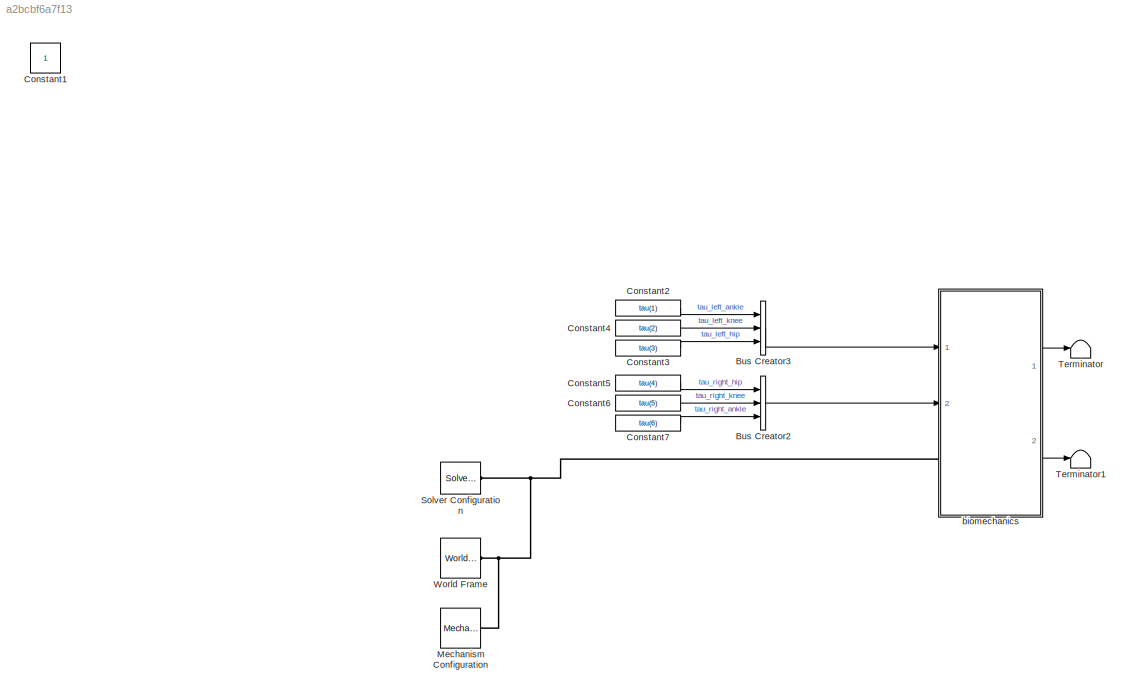
MODEL slx_a2bcbf6a7f13
KIND model
CONFIG AbsTol = auto
CONFIG EnableMultiTasking = off
CONFIG FixedStep = auto
CONFIG MaxStep = auto
CONFIG MinStep = auto
CONFIG RelTol = 1e-3
CONFIG SampleTimeConstraint = Unconstrained
CONFIG SolverName = VariableStepAuto
CONFIG StartTime = 0.0
CONFIG StopTime = 0.5
BLOCK [BusCreator] Bus Creator2
  DisplayOption = bar
  InheritFromInputs = on
  Inputs = 3
  Ports = [3, 1]
BLOCK [BusCreator] Bus Creator3
  DisplayOption = bar
  InheritFromInputs = on
  Inputs = 3
  Ports = [3, 1]
BLOCK [Constant] Constant1
  IOType = siggen
BLOCK [Constant] Constant2
  Value = tau(1)
BLOCK [Constant] Constant3
  Value = tau(3)
BLOCK [Constant] Constant4
  Value = tau(2)
BLOCK [Constant] Constant5
  Value = tau(4)
BLOCK [Constant] Constant6
  Value = tau(5)
BLOCK [Constant] Constant7
  Value = tau(6)
BLOCK [Reference] Mechanism Configuration  REF=sm_lib/Utilities/Mechanism
Configuration
  Ports = [0, 0, 0, 0, 0, 0, 1]
  SourceBlock = sm_lib/Utilities/Mechanism\nConfiguration
  SourceProductBaseCode = MS
  SourceType = Mechanism\nConfiguration
BLOCK [Reference] Solver Configuration  REF=nesl_utility/Solver
Configuration
  Ports = [0, 0, 0, 0, 0, 0, 1]
  SourceBlock = nesl_utility/Solver\nConfiguration
  SourceProductBaseCode = PW,SS
  SourceType = Solver\nConfiguration
BLOCK [Terminator] Terminator
BLOCK [Terminator] Terminator1
BLOCK [Reference] World Frame  REF=sm_lib/Frames and
Transforms/World Frame
  Ports = [0, 0, 0, 0, 0, 0, 1]
  SourceBlock = sm_lib/Frames and\nTransforms/World Frame
  SourceProductBaseCode = MS
  SourceType = World Frame
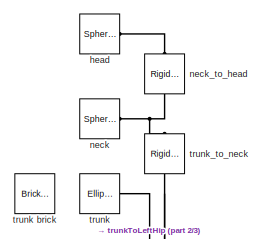
[diagram: biomechanics - part 1/3, top center region]
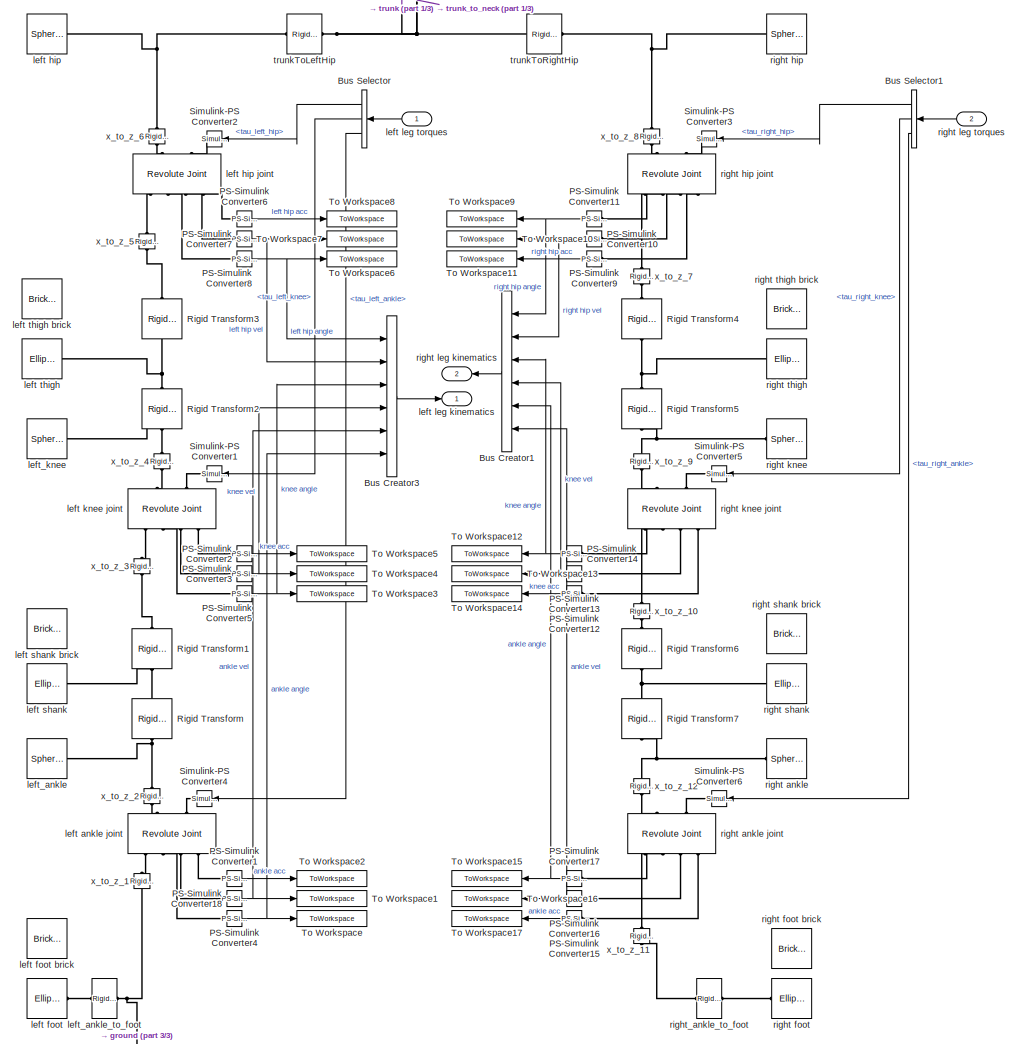
[diagram: biomechanics - part 2/3, most of the canvas]
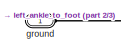
[diagram: biomechanics - part 3/3, bottom left region]
BLOCK [SubSystem] biomechanics
  Ports = [2, 2, 0, 0, 0, 1]
  RequestExecContextInheritance = off
BLOCK [BusCreator] biomechanics/Bus Creator1
  DisplayOption = bar
  InheritFromInputs = on
  Inputs = 6
  NameLocation = top
  Ports = [6, 1]
BLOCK [BusCreator] biomechanics/Bus Creator3
  DisplayOption = bar
  InheritFromInputs = on
  Inputs = 6
  Ports = [6, 1]
BLOCK [BusSelector] biomechanics/Bus Selector
  NameLocation = top
  OutputSignals = tau_left_hip,tau_left_knee,tau_left_ankle
  Ports = [1, 3]
BLOCK [BusSelector] biomechanics/Bus Selector1
  NameLocation = top
  OutputSignals = tau_right_hip,tau_right_knee,tau_right_ankle
  Ports = [1, 3]
BLOCK [Reference] biomechanics/PS-Simulink Converter1  REF=nesl_utility/PS-Simulink
Converter
  Ports = [0, 1, 0, 0, 0, 1]
  SourceBlock = nesl_utility/PS-Simulink\nConverter
  SourceProductBaseCode = PW,SS
  SourceType = PS-Simulink\nConverter
BLOCK [Reference] biomechanics/PS-Simulink Converter10  REF=nesl_utility/PS-Simulink
Converter
  NameLocation = top
  Ports = [0, 1, 0, 0, 0, 1]
  SourceBlock = nesl_utility/PS-Simulink\nConverter
  SourceProductBaseCode = PW,SS
  SourceType = PS-Simulink\nConverter
BLOCK [Reference] biomechanics/PS-Simulink Converter11  REF=nesl_utility/PS-Simulink
Converter
  NameLocation = top
  Ports = [0, 1, 0, 0, 0, 1]
  SourceBlock = nesl_utility/PS-Simulink\nConverter
  SourceProductBaseCode = PW,SS
  SourceType = PS-Simulink\nConverter
BLOCK [Reference] biomechanics/PS-Simulink Converter12  REF=nesl_utility/PS-Simulink
Converter
  NameLocation = top
  Ports = [0, 1, 0, 0, 0, 1]
  SourceBlock = nesl_utility/PS-Simulink\nConverter
  SourceProductBaseCode = PW,SS
  SourceType = PS-Simulink\nConverter
BLOCK [Reference] biomechanics/PS-Simulink Converter13  REF=nesl_utility/PS-Simulink
Converter
  NameLocation = top
  Ports = [0, 1, 0, 0, 0, 1]
  SourceBlock = nesl_utility/PS-Simulink\nConverter
  SourceProductBaseCode = PW,SS
  SourceType = PS-Simulink\nConverter
BLOCK [Reference] biomechanics/PS-Simulink Converter14  REF=nesl_utility/PS-Simulink
Converter
  NameLocation = top
  Ports = [0, 1, 0, 0, 0, 1]
  SourceBlock = nesl_utility/PS-Simulink\nConverter
  SourceProductBaseCode = PW,SS
  SourceType = PS-Simulink\nConverter
BLOCK [Reference] biomechanics/PS-Simulink Converter15  REF=nesl_utility/PS-Simulink
Converter
  NameLocation = top
  Ports = [0, 1, 0, 0, 0, 1]
  SourceBlock = nesl_utility/PS-Simulink\nConverter
  SourceProductBaseCode = PW,SS
  SourceType = PS-Simulink\nConverter
BLOCK [Reference] biomechanics/PS-Simulink Converter16  REF=nesl_utility/PS-Simulink
Converter
  NameLocation = top
  Ports = [0, 1, 0, 0, 0, 1]
  SourceBlock = nesl_utility/PS-Simulink\nConverter
  SourceProductBaseCode = PW,SS
  SourceType = PS-Simulink\nConverter
BLOCK [Reference] biomechanics/PS-Simulink Converter17  REF=nesl_utility/PS-Simulink
Converter
  NameLocation = top
  Ports = [0, 1, 0, 0, 0, 1]
  SourceBlock = nesl_utility/PS-Simulink\nConverter
  SourceProductBaseCode = PW,SS
  SourceType = PS-Simulink\nConverter
BLOCK [Reference] biomechanics/PS-Simulink Converter18  REF=nesl_utility/PS-Simulink
Converter
  Ports = [0, 1, 0, 0, 0, 1]
  SourceBlock = nesl_utility/PS-Simulink\nConverter
  SourceProductBaseCode = PW,SS
  SourceType = PS-Simulink\nConverter
BLOCK [Reference] biomechanics/PS-Simulink Converter2  REF=nesl_utility/PS-Simulink
Converter
  Ports = [0, 1, 0, 0, 0, 1]
  SourceBlock = nesl_utility/PS-Simulink\nConverter
  SourceProductBaseCode = PW,SS
  SourceType = PS-Simulink\nConverter
BLOCK [Reference] biomechanics/PS-Simulink Converter3  REF=nesl_utility/PS-Simulink
Converter
  Ports = [0, 1, 0, 0, 0, 1]
  SourceBlock = nesl_utility/PS-Simulink\nConverter
  SourceProductBaseCode = PW,SS
  SourceType = PS-Simulink\nConverter
BLOCK [Reference] biomechanics/PS-Simulink Converter4  REF=nesl_utility/PS-Simulink
Converter
  Ports = [0, 1, 0, 0, 0, 1]
  SourceBlock = nesl_utility/PS-Simulink\nConverter
  SourceProductBaseCode = PW,SS
  SourceType = PS-Simulink\nConverter
BLOCK [Reference] biomechanics/PS-Simulink Converter5  REF=nesl_utility/PS-Simulink
Converter
  Ports = [0, 1, 0, 0, 0, 1]
  SourceBlock = nesl_utility/PS-Simulink\nConverter
  SourceProductBaseCode = PW,SS
  SourceType = PS-Simulink\nConverter
BLOCK [Reference] biomechanics/PS-Simulink Converter6  REF=nesl_utility/PS-Simulink
Converter
  Ports = [0, 1, 0, 0, 0, 1]
  SourceBlock = nesl_utility/PS-Simulink\nConverter
  SourceProductBaseCode = PW,SS
  SourceType = PS-Simulink\nConverter
BLOCK [Reference] biomechanics/PS-Simulink Converter7  REF=nesl_utility/PS-Simulink
Converter
  Ports = [0, 1, 0, 0, 0, 1]
  SourceBlock = nesl_utility/PS-Simulink\nConverter
  SourceProductBaseCode = PW,SS
  SourceType = PS-Simulink\nConverter
BLOCK [Reference] biomechanics/PS-Simulink Converter8  REF=nesl_utility/PS-Simulink
Converter
  Ports = [0, 1, 0, 0, 0, 1]
  SourceBlock = nesl_utility/PS-Simulink\nConverter
  SourceProductBaseCode = PW,SS
  SourceType = PS-Simulink\nConverter
BLOCK [Reference] biomechanics/PS-Simulink Converter9  REF=nesl_utility/PS-Simulink
Converter
  NameLocation = top
  Ports = [0, 1, 0, 0, 0, 1]
  SourceBlock = nesl_utility/PS-Simulink\nConverter
  SourceProductBaseCode = PW,SS
  SourceType = PS-Simulink\nConverter
BLOCK [Reference] biomechanics/Rigid Transform  REF=sm_lib/Frames and
Transforms/Rigid
Transform
  NameLocation = right
  Ports = [0, 0, 0, 0, 0, 1, 1]
  SourceBlock = sm_lib/Frames and\nTransforms/Rigid\nTransform
  SourceProductBaseCode = MS
  SourceType = Rigid\nTransform
BLOCK [Reference] biomechanics/Rigid Transform1  REF=sm_lib/Frames and
Transforms/Rigid
Transform
  NameLocation = right
  Ports = [0, 0, 0, 0, 0, 1, 1]
  SourceBlock = sm_lib/Frames and\nTransforms/Rigid\nTransform
  SourceProductBaseCode = MS
  SourceType = Rigid\nTransform
BLOCK [Reference] biomechanics/Rigid Transform2  REF=sm_lib/Frames and
Transforms/Rigid
Transform
  NameLocation = right
  Ports = [0, 0, 0, 0, 0, 1, 1]
  SourceBlock = sm_lib/Frames and\nTransforms/Rigid\nTransform
  SourceProductBaseCode = MS
  SourceType = Rigid\nTransform
BLOCK [Reference] biomechanics/Rigid Transform3  REF=sm_lib/Frames and
Transforms/Rigid
Transform
  NameLocation = right
  Ports = [0, 0, 0, 0, 0, 1, 1]
  SourceBlock = sm_lib/Frames and\nTransforms/Rigid\nTransform
  SourceProductBaseCode = MS
  SourceType = Rigid\nTransform
BLOCK [Reference] biomechanics/Rigid Transform4  REF=sm_lib/Frames and
Transforms/Rigid
Transform
  NameLocation = right
  Ports = [0, 0, 0, 0, 0, 1, 1]
  SourceBlock = sm_lib/Frames and\nTransforms/Rigid\nTransform
  SourceProductBaseCode = MS
  SourceType = Rigid\nTransform
BLOCK [Reference] biomechanics/Rigid Transform5  REF=sm_lib/Frames and
Transforms/Rigid
Transform
  NameLocation = right
  Ports = [0, 0, 0, 0, 0, 1, 1]
  SourceBlock = sm_lib/Frames and\nTransforms/Rigid\nTransform
  SourceProductBaseCode = MS
  SourceType = Rigid\nTransform
BLOCK [Reference] biomechanics/Rigid Transform6  REF=sm_lib/Frames and
Transforms/Rigid
Transform
  NameLocation = right
  Ports = [0, 0, 0, 0, 0, 1, 1]
  SourceBlock = sm_lib/Frames and\nTransforms/Rigid\nTransform
  SourceProductBaseCode = MS
  SourceType = Rigid\nTransform
BLOCK [Reference] biomechanics/Rigid Transform7  REF=sm_lib/Frames and
Transforms/Rigid
Transform
  NameLocation = right
  Ports = [0, 0, 0, 0, 0, 1, 1]
  SourceBlock = sm_lib/Frames and\nTransforms/Rigid\nTransform
  SourceProductBaseCode = MS
  SourceType = Rigid\nTransform
BLOCK [Reference] biomechanics/Simulink-PS Converter1  REF=nesl_utility/Simulink-PS
Converter
  NameLocation = top
  Ports = [1, 0, 0, 0, 0, 0, 1]
  SourceBlock = nesl_utility/Simulink-PS\nConverter
  SourceProductBaseCode = PW,SS
  SourceType = Simulink-PS\nConverter
BLOCK [Reference] biomechanics/Simulink-PS Converter2  REF=nesl_utility/Simulink-PS
Converter
  NameLocation = top
  Ports = [1, 0, 0, 0, 0, 0, 1]
  SourceBlock = nesl_utility/Simulink-PS\nConverter
  SourceProductBaseCode = PW,SS
  SourceType = Simulink-PS\nConverter
BLOCK [Reference] biomechanics/Simulink-PS Converter3  REF=nesl_utility/Simulink-PS
Converter
  NameLocation = top
  Ports = [1, 0, 0, 0, 0, 0, 1]
  SourceBlock = nesl_utility/Simulink-PS\nConverter
  SourceProductBaseCode = PW,SS
  SourceType = Simulink-PS\nConverter
BLOCK [Reference] biomechanics/Simulink-PS Converter4  REF=nesl_utility/Simulink-PS
Converter
  NameLocation = top
  Ports = [1, 0, 0, 0, 0, 0, 1]
  SourceBlock = nesl_utility/Simulink-PS\nConverter
  SourceProductBaseCode = PW,SS
  SourceType = Simulink-PS\nConverter
BLOCK [Reference] biomechanics/Simulink-PS Converter5  REF=nesl_utility/Simulink-PS
Converter
  NameLocation = top
  Ports = [1, 0, 0, 0, 0, 0, 1]
  SourceBlock = nesl_utility/Simulink-PS\nConverter
  SourceProductBaseCode = PW,SS
  SourceType = Simulink-PS\nConverter
BLOCK [Reference] biomechanics/Simulink-PS Converter6  REF=nesl_utility/Simulink-PS
Converter
  NameLocation = top
  Ports = [1, 0, 0, 0, 0, 0, 1]
  SourceBlock = nesl_utility/Simulink-PS\nConverter
  SourceProductBaseCode = PW,SS
  SourceType = Simulink-PS\nConverter
BLOCK [ToWorkspace] biomechanics/To Workspace
  FixptAsFi = on
  MaxDataPoints = inf
  Ports = [1]
  SampleTime = -1
  SaveFormat = Timeseries
  VariableName = left_ankle_angle
BLOCK [ToWorkspace] biomechanics/To Workspace1
  FixptAsFi = on
  MaxDataPoints = inf
  Ports = [1]
  SampleTime = -1
  SaveFormat = Timeseries
  VariableName = left_ankle_vel
BLOCK [ToWorkspace] biomechanics/To Workspace10
  FixptAsFi = on
  MaxDataPoints = inf
  NameLocation = left
  Ports = [1]
  SampleTime = -1
  SaveFormat = Timeseries
  VariableName = right_hip_vel
BLOCK [ToWorkspace] biomechanics/To Workspace11
  FixptAsFi = on
  MaxDataPoints = inf
  NameLocation = top
  Ports = [1]
  SampleTime = -1
  SaveFormat = Timeseries
  VariableName = right_hip_acc
BLOCK [ToWorkspace] biomechanics/To Workspace12
  FixptAsFi = on
  MaxDataPoints = inf
  NameLocation = top
  Ports = [1]
  SampleTime = -1
  SaveFormat = Timeseries
  VariableName = right_knee_angle
BLOCK [ToWorkspace] biomechanics/To Workspace13
  FixptAsFi = on
  MaxDataPoints = inf
  NameLocation = top
  Ports = [1]
  SampleTime = -1
  SaveFormat = Timeseries
  VariableName = right_knee_vel
BLOCK [ToWorkspace] biomechanics/To Workspace14
  FixptAsFi = on
  MaxDataPoints = inf
  NameLocation = top
  Ports = [1]
  SampleTime = -1
  SaveFormat = Timeseries
  VariableName = right_knee_acc
BLOCK [ToWorkspace] biomechanics/To Workspace15
  FixptAsFi = on
  MaxDataPoints = inf
  NameLocation = top
  Ports = [1]
  SampleTime = -1
  SaveFormat = Timeseries
  VariableName = right_ankle_angle
BLOCK [ToWorkspace] biomechanics/To Workspace16
  FixptAsFi = on
  MaxDataPoints = inf
  NameLocation = top
  Ports = [1]
  SampleTime = -1
  SaveFormat = Timeseries
  VariableName = right_ankle_vel
BLOCK [ToWorkspace] biomechanics/To Workspace17
  FixptAsFi = on
  MaxDataPoints = inf
  NameLocation = top
  Ports = [1]
  SampleTime = -1
  SaveFormat = Timeseries
  VariableName = right_ankle_acc
BLOCK [ToWorkspace] biomechanics/To Workspace2
  FixptAsFi = on
  MaxDataPoints = inf
  Ports = [1]
  SampleTime = -1
  SaveFormat = Timeseries
  VariableName = left_ankle_acc
BLOCK [ToWorkspace] biomechanics/To Workspace3
  FixptAsFi = on
  MaxDataPoints = inf
  Ports = [1]
  SampleTime = -1
  SaveFormat = Timeseries
  VariableName = left_knee_angle
BLOCK [ToWorkspace] biomechanics/To Workspace4
  FixptAsFi = on
  MaxDataPoints = inf
  Ports = [1]
  SampleTime = -1
  SaveFormat = Timeseries
  VariableName = left_knee_vel
BLOCK [ToWorkspace] biomechanics/To Workspace5
  FixptAsFi = on
  MaxDataPoints = inf
  Ports = [1]
  SampleTime = -1
  SaveFormat = Timeseries
  VariableName = left_knee_acc
BLOCK [ToWorkspace] biomechanics/To Workspace6
  FixptAsFi = on
  MaxDataPoints = inf
  Ports = [1]
  SampleTime = -1
  SaveFormat = Timeseries
  VariableName = left_hip_angle
BLOCK [ToWorkspace] biomechanics/To Workspace7
  FixptAsFi = on
  MaxDataPoints = inf
  Ports = [1]
  SampleTime = -1
  SaveFormat = Timeseries
  VariableName = left_hip_vel
BLOCK [ToWorkspace] biomechanics/To Workspace8
  FixptAsFi = on
  MaxDataPoints = inf
  Ports = [1]
  SampleTime = -1
  SaveFormat = Timeseries
  VariableName = left_hip_acc
BLOCK [ToWorkspace] biomechanics/To Workspace9
  FixptAsFi = on
  MaxDataPoints = inf
  NameLocation = top
  Ports = [1]
  SampleTime = -1
  SaveFormat = Timeseries
  VariableName = right_hip_angle
BLOCK [PMIOPort] biomechanics/ground
  Side = Left
BLOCK [Reference] biomechanics/head  REF=sm_lib/Body Elements/Spherical Solid
  Ports = [0, 0, 0, 0, 0, 0, 1]
  SourceBlock = sm_lib/Body Elements/Spherical Solid
  SourceProductBaseCode = MS
  SourceType = Spherical Solid
BLOCK [Reference] biomechanics/left ankle joint  REF=sm_lib/Joints/Revolute Joint
  NameLocation = left
  Ports = [0, 0, 0, 0, 0, 2, 4]
  SourceBlock = sm_lib/Joints/Revolute Joint
  SourceProductBaseCode = MS
  SourceType = Revolute Joint
BLOCK [Reference] biomechanics/left foot  REF=sm_lib/Body Elements/Ellipsoidal Solid
  NameLocation = left
  Ports = [0, 0, 0, 0, 0, 0, 1]
  SourceBlock = sm_lib/Body Elements/Ellipsoidal Solid
  SourceProductBaseCode = MS
  SourceType = Ellipsoidal Solid
BLOCK [Reference] biomechanics/left foot brick  REF=sm_lib/Body Elements/Brick Solid
  Commented = on
  NameLocation = left
  Ports = [0, 0, 0, 0, 0, 0, 1]
  SourceBlock = sm_lib/Body Elements/Brick Solid
  SourceProductBaseCode = MS
  SourceType = Brick Solid
BLOCK [Reference] biomechanics/left hip  REF=sm_lib/Body Elements/Spherical Solid
  NameLocation = left
  Ports = [0, 0, 0, 0, 0, 0, 1]
  SourceBlock = sm_lib/Body Elements/Spherical Solid
  SourceProductBaseCode = MS
  SourceType = Spherical Solid
BLOCK [Reference] biomechanics/left hip joint  REF=sm_lib/Joints/Revolute Joint
  NameLocation = left
  Ports = [0, 0, 0, 0, 0, 2, 4]
  SourceBlock = sm_lib/Joints/Revolute Joint
  SourceProductBaseCode = MS
  SourceType = Revolute Joint
BLOCK [Reference] biomechanics/left knee joint  REF=sm_lib/Joints/Revolute Joint
  NameLocation = left
  Ports = [0, 0, 0, 0, 0, 2, 4]
  SourceBlock = sm_lib/Joints/Revolute Joint
  SourceProductBaseCode = MS
  SourceType = Revolute Joint
BLOCK [Outport] biomechanics/left leg kinematics
BLOCK [Inport] biomechanics/left leg torques
BLOCK [Reference] biomechanics/left shank  REF=sm_lib/Body Elements/Ellipsoidal Solid
  Ports = [0, 0, 0, 0, 0, 0, 1]
  SourceBlock = sm_lib/Body Elements/Ellipsoidal Solid
  SourceProductBaseCode = MS
  SourceType = Ellipsoidal Solid
BLOCK [Reference] biomechanics/left shank brick  REF=sm_lib/Body Elements/Brick Solid
  Commented = on
  NameLocation = left
  Ports = [0, 0, 0, 0, 0, 0, 1]
  SourceBlock = sm_lib/Body Elements/Brick Solid
  SourceProductBaseCode = MS
  SourceType = Brick Solid
BLOCK [Reference] biomechanics/left thigh  REF=sm_lib/Body Elements/Ellipsoidal Solid
  Ports = [0, 0, 0, 0, 0, 0, 1]
  SourceBlock = sm_lib/Body Elements/Ellipsoidal Solid
  SourceProductBaseCode = MS
  SourceType = Ellipsoidal Solid
BLOCK [Reference] biomechanics/left thigh brick  REF=sm_lib/Body Elements/Brick Solid
  Commented = on
  NameLocation = left
  Ports = [0, 0, 0, 0, 0, 0, 1]
  SourceBlock = sm_lib/Body Elements/Brick Solid
  SourceProductBaseCode = MS
  SourceType = Brick Solid
BLOCK [Reference] biomechanics/left_ankle  REF=sm_lib/Body Elements/Spherical Solid
  NameLocation = left
  Ports = [0, 0, 0, 0, 0, 0, 1]
  SourceBlock = sm_lib/Body Elements/Spherical Solid
  SourceProductBaseCode = MS
  SourceType = Spherical Solid
BLOCK [Reference] biomechanics/left_ankle_to_foot  REF=sm_lib/Frames and
Transforms/Rigid
Transform
  Ports = [0, 0, 0, 0, 0, 1, 1]
  SourceBlock = sm_lib/Frames and\nTransforms/Rigid\nTransform
  SourceProductBaseCode = MS
  SourceType = Rigid\nTransform
BLOCK [Reference] biomechanics/left_knee  REF=sm_lib/Body Elements/Spherical Solid
  NameLocation = left
  Ports = [0, 0, 0, 0, 0, 0, 1]
  SourceBlock = sm_lib/Body Elements/Spherical Solid
  SourceProductBaseCode = MS
  SourceType = Spherical Solid
BLOCK [Reference] biomechanics/neck  REF=sm_lib/Body Elements/Spherical Solid
  NameLocation = left
  Ports = [0, 0, 0, 0, 0, 0, 1]
  SourceBlock = sm_lib/Body Elements/Spherical Solid
  SourceProductBaseCode = MS
  SourceType = Spherical Solid
BLOCK [Reference] biomechanics/neck_to_head  REF=sm_lib/Frames and
Transforms/Rigid
Transform
  NameLocation = right
  Ports = [0, 0, 0, 0, 0, 1, 1]
  SourceBlock = sm_lib/Frames and\nTransforms/Rigid\nTransform
  SourceProductBaseCode = MS
  SourceType = Rigid\nTransform
BLOCK [Reference] biomechanics/right ankle  REF=sm_lib/Body Elements/Spherical Solid
  NameLocation = right
  Ports = [0, 0, 0, 0, 0, 0, 1]
  SourceBlock = sm_lib/Body Elements/Spherical Solid
  SourceProductBaseCode = MS
  SourceType = Spherical Solid
BLOCK [Reference] biomechanics/right ankle joint  REF=sm_lib/Joints/Revolute Joint
  NameLocation = right
  Ports = [0, 0, 0, 0, 0, 2, 4]
  SourceBlock = sm_lib/Joints/Revolute Joint
  SourceProductBaseCode = MS
  SourceType = Revolute Joint
BLOCK [Reference] biomechanics/right foot  REF=sm_lib/Body Elements/Ellipsoidal Solid
  NameLocation = right
  Ports = [0, 0, 0, 0, 0, 0, 1]
  SourceBlock = sm_lib/Body Elements/Ellipsoidal Solid
  SourceProductBaseCode = MS
  SourceType = Ellipsoidal Solid
BLOCK [Reference] biomechanics/right foot brick  REF=sm_lib/Body Elements/Brick Solid
  Commented = on
  NameLocation = right
  Ports = [0, 0, 0, 0, 0, 0, 1]
  SourceBlock = sm_lib/Body Elements/Brick Solid
  SourceProductBaseCode = MS
  SourceType = Brick Solid
BLOCK [Reference] biomechanics/right hip  REF=sm_lib/Body Elements/Spherical Solid
  NameLocation = right
  Ports = [0, 0, 0, 0, 0, 0, 1]
  SourceBlock = sm_lib/Body Elements/Spherical Solid
  SourceProductBaseCode = MS
  SourceType = Spherical Solid
BLOCK [Reference] biomechanics/right hip joint  REF=sm_lib/Joints/Revolute Joint
  NameLocation = right
  Ports = [0, 0, 0, 0, 0, 2, 4]
  SourceBlock = sm_lib/Joints/Revolute Joint
  SourceProductBaseCode = MS
  SourceType = Revolute Joint
BLOCK [Reference] biomechanics/right knee  REF=sm_lib/Body Elements/Spherical Solid
  NameLocation = right
  Ports = [0, 0, 0, 0, 0, 0, 1]
  SourceBlock = sm_lib/Body Elements/Spherical Solid
  SourceProductBaseCode = MS
  SourceType = Spherical Solid
BLOCK [Reference] biomechanics/right knee joint  REF=sm_lib/Joints/Revolute Joint
  NameLocation = right
  Ports = [0, 0, 0, 0, 0, 2, 4]
  SourceBlock = sm_lib/Joints/Revolute Joint
  SourceProductBaseCode = MS
  SourceType = Revolute Joint
BLOCK [Outport] biomechanics/right leg kinematics
  NameLocation = top
  Port = 2
BLOCK [Inport] biomechanics/right leg torques
  Port = 2
BLOCK [Reference] biomechanics/right shank  REF=sm_lib/Body Elements/Ellipsoidal Solid
  NameLocation = right
  Ports = [0, 0, 0, 0, 0, 0, 1]
  SourceBlock = sm_lib/Body Elements/Ellipsoidal Solid
  SourceProductBaseCode = MS
  SourceType = Ellipsoidal Solid
BLOCK [Reference] biomechanics/right shank brick  REF=sm_lib/Body Elements/Brick Solid
  Commented = on
  NameLocation = right
  Ports = [0, 0, 0, 0, 0, 0, 1]
  SourceBlock = sm_lib/Body Elements/Brick Solid
  SourceProductBaseCode = MS
  SourceType = Brick Solid
BLOCK [Reference] biomechanics/right thigh  REF=sm_lib/Body Elements/Ellipsoidal Solid
  NameLocation = right
  Ports = [0, 0, 0, 0, 0, 0, 1]
  SourceBlock = sm_lib/Body Elements/Ellipsoidal Solid
  SourceProductBaseCode = MS
  SourceType = Ellipsoidal Solid
BLOCK [Reference] biomechanics/right thigh brick  REF=sm_lib/Body Elements/Brick Solid
  Commented = on
  NameLocation = right
  Ports = [0, 0, 0, 0, 0, 0, 1]
  SourceBlock = sm_lib/Body Elements/Brick Solid
  SourceProductBaseCode = MS
  SourceType = Brick Solid
BLOCK [Reference] biomechanics/right_ankle_to_foot  REF=sm_lib/Frames and
Transforms/Rigid
Transform
  NameLocation = top
  Ports = [0, 0, 0, 0, 0, 1, 1]
  SourceBlock = sm_lib/Frames and\nTransforms/Rigid\nTransform
  SourceProductBaseCode = MS
  SourceType = Rigid\nTransform
BLOCK [Reference] biomechanics/trunk  REF=sm_lib/Body Elements/Ellipsoidal Solid
  Ports = [0, 0, 0, 0, 0, 0, 1]
  SourceBlock = sm_lib/Body Elements/Ellipsoidal Solid
  SourceProductBaseCode = MS
  SourceType = Ellipsoidal Solid
BLOCK [Reference] biomechanics/trunk brick  REF=sm_lib/Body Elements/Brick Solid
  Commented = on
  NameLocation = left
  Ports = [0, 0, 0, 0, 0, 0, 1]
  SourceBlock = sm_lib/Body Elements/Brick Solid
  SourceProductBaseCode = MS
  SourceType = Brick Solid
BLOCK [Reference] biomechanics/trunkToLeftHip  REF=sm_lib/Frames and
Transforms/Rigid
Transform
  NameLocation = top
  Ports = [0, 0, 0, 0, 0, 1, 1]
  SourceBlock = sm_lib/Frames and\nTransforms/Rigid\nTransform
  SourceProductBaseCode = MS
  SourceType = Rigid\nTransform
BLOCK [Reference] biomechanics/trunkToRightHip  REF=sm_lib/Frames and
Transforms/Rigid
Transform
  Ports = [0, 0, 0, 0, 0, 1, 1]
  SourceBlock = sm_lib/Frames and\nTransforms/Rigid\nTransform
  SourceProductBaseCode = MS
  SourceType = Rigid\nTransform
BLOCK [Reference] biomechanics/trunk_to_neck  REF=sm_lib/Frames and
Transforms/Rigid
Transform
  NameLocation = right
  Ports = [0, 0, 0, 0, 0, 1, 1]
  SourceBlock = sm_lib/Frames and\nTransforms/Rigid\nTransform
  SourceProductBaseCode = MS
  SourceType = Rigid\nTransform
BLOCK [Reference] biomechanics/x_to_z_1  REF=sm_lib/Frames and
Transforms/Rigid
Transform
  NameLocation = left
  Ports = [0, 0, 0, 0, 0, 1, 1]
  SourceBlock = sm_lib/Frames and\nTransforms/Rigid\nTransform
  SourceProductBaseCode = MS
  SourceType = Rigid\nTransform
BLOCK [Reference] biomechanics/x_to_z_10  REF=sm_lib/Frames and
Transforms/Rigid
Transform
  NameLocation = right
  Ports = [0, 0, 0, 0, 0, 1, 1]
  SourceBlock = sm_lib/Frames and\nTransforms/Rigid\nTransform
  SourceProductBaseCode = MS
  SourceType = Rigid\nTransform
BLOCK [Reference] biomechanics/x_to_z_11  REF=sm_lib/Frames and
Transforms/Rigid
Transform
  NameLocation = right
  Ports = [0, 0, 0, 0, 0, 1, 1]
  SourceBlock = sm_lib/Frames and\nTransforms/Rigid\nTransform
  SourceProductBaseCode = MS
  SourceType = Rigid\nTransform
BLOCK [Reference] biomechanics/x_to_z_12  REF=sm_lib/Frames and
Transforms/Rigid
Transform
  NameLocation = left
  Ports = [0, 0, 0, 0, 0, 1, 1]
  SourceBlock = sm_lib/Frames and\nTransforms/Rigid\nTransform
  SourceProductBaseCode = MS
  SourceType = Rigid\nTransform
BLOCK [Reference] biomechanics/x_to_z_2  REF=sm_lib/Frames and
Transforms/Rigid
Transform
  NameLocation = left
  Ports = [0, 0, 0, 0, 0, 1, 1]
  SourceBlock = sm_lib/Frames and\nTransforms/Rigid\nTransform
  SourceProductBaseCode = MS
  SourceType = Rigid\nTransform
BLOCK [Reference] biomechanics/x_to_z_3  REF=sm_lib/Frames and
Transforms/Rigid
Transform
  NameLocation = left
  Ports = [0, 0, 0, 0, 0, 1, 1]
  SourceBlock = sm_lib/Frames and\nTransforms/Rigid\nTransform
  SourceProductBaseCode = MS
  SourceType = Rigid\nTransform
BLOCK [Reference] biomechanics/x_to_z_4  REF=sm_lib/Frames and
Transforms/Rigid
Transform
  NameLocation = left
  Ports = [0, 0, 0, 0, 0, 1, 1]
  SourceBlock = sm_lib/Frames and\nTransforms/Rigid\nTransform
  SourceProductBaseCode = MS
  SourceType = Rigid\nTransform
BLOCK [Reference] biomechanics/x_to_z_5  REF=sm_lib/Frames and
Transforms/Rigid
Transform
  NameLocation = left
  Ports = [0, 0, 0, 0, 0, 1, 1]
  SourceBlock = sm_lib/Frames and\nTransforms/Rigid\nTransform
  SourceProductBaseCode = MS
  SourceType = Rigid\nTransform
BLOCK [Reference] biomechanics/x_to_z_6  REF=sm_lib/Frames and
Transforms/Rigid
Transform
  NameLocation = left
  Ports = [0, 0, 0, 0, 0, 1, 1]
  SourceBlock = sm_lib/Frames and\nTransforms/Rigid\nTransform
  SourceProductBaseCode = MS
  SourceType = Rigid\nTransform
BLOCK [Reference] biomechanics/x_to_z_7  REF=sm_lib/Frames and
Transforms/Rigid
Transform
  NameLocation = right
  Ports = [0, 0, 0, 0, 0, 1, 1]
  SourceBlock = sm_lib/Frames and\nTransforms/Rigid\nTransform
  SourceProductBaseCode = MS
  SourceType = Rigid\nTransform
BLOCK [Reference] biomechanics/x_to_z_8  REF=sm_lib/Frames and
Transforms/Rigid
Transform
  NameLocation = left
  Ports = [0, 0, 0, 0, 0, 1, 1]
  SourceBlock = sm_lib/Frames and\nTransforms/Rigid\nTransform
  SourceProductBaseCode = MS
  SourceType = Rigid\nTransform
BLOCK [Reference] biomechanics/x_to_z_9  REF=sm_lib/Frames and
Transforms/Rigid
Transform
  NameLocation = left
  Ports = [0, 0, 0, 0, 0, 1, 1]
  SourceBlock = sm_lib/Frames and\nTransforms/Rigid\nTransform
  SourceProductBaseCode = MS
  SourceType = Rigid\nTransform
LINE Bus Creator2:1 -> biomechanics:2
LINE Bus Creator3:1 -> biomechanics:1
LINE Constant2:1 -> Bus Creator3:1
LINE Constant3:1 -> Bus Creator3:3
LINE Constant4:1 -> Bus Creator3:2
LINE Constant5:1 -> Bus Creator2:1
LINE Constant6:1 -> Bus Creator2:2
LINE Constant7:1 -> Bus Creator2:3
LINE biomechanics/Bus Creator1:1 -> biomechanics/right leg kinematics:1
LINE biomechanics/Bus Creator3:1 -> biomechanics/left leg kinematics:1
LINE biomechanics/Bus Selector1:1 -> biomechanics/Simulink-PS Converter3:1
LINE biomechanics/Bus Selector1:2 -> biomechanics/Simulink-PS Converter5:1
LINE biomechanics/Bus Selector1:3 -> biomechanics/Simulink-PS Converter6:1
LINE biomechanics/Bus Selector:1 -> biomechanics/Simulink-PS Converter2:1
LINE biomechanics/Bus Selector:2 -> biomechanics/Simulink-PS Converter1:1
LINE biomechanics/Bus Selector:3 -> biomechanics/Simulink-PS Converter4:1
NET biomechanics/PS-Simulink Converter10:1 -> biomechanics/Bus Creator1:2, biomechanics/To Workspace10:1
NET biomechanics/PS-Simulink Converter11:1 -> biomechanics/Bus Creator1:1, biomechanics/To Workspace9:1
LINE biomechanics/PS-Simulink Converter12:1 -> biomechanics/To Workspace14:1
NET biomechanics/PS-Simulink Converter13:1 -> biomechanics/Bus Creator1:4, biomechanics/To Workspace13:1
NET biomechanics/PS-Simulink Converter14:1 -> biomechanics/Bus Creator1:3, biomechanics/To Workspace12:1
LINE biomechanics/PS-Simulink Converter15:1 -> biomechanics/To Workspace17:1
NET biomechanics/PS-Simulink Converter16:1 -> biomechanics/Bus Creator1:6, biomechanics/To Workspace16:1
NET biomechanics/PS-Simulink Converter17:1 -> biomechanics/Bus Creator1:5, biomechanics/To Workspace15:1
NET biomechanics/PS-Simulink Converter18:1 -> biomechanics/Bus Creator3:5, biomechanics/To Workspace1:1
LINE biomechanics/PS-Simulink Converter1:1 -> biomechanics/To Workspace2:1
LINE biomechanics/PS-Simulink Converter2:1 -> biomechanics/To Workspace5:1
NET biomechanics/PS-Simulink Converter3:1 -> biomechanics/Bus Creator3:4, biomechanics/To Workspace4:1
NET biomechanics/PS-Simulink Converter4:1 -> biomechanics/Bus Creator3:6, biomechanics/To Workspace:1
NET biomechanics/PS-Simulink Converter5:1 -> biomechanics/Bus Creator3:3, biomechanics/To Workspace3:1
LINE biomechanics/PS-Simulink Converter6:1 -> biomechanics/To Workspace8:1
NET biomechanics/PS-Simulink Converter7:1 -> biomechanics/Bus Creator3:2, biomechanics/To Workspace7:1
NET biomechanics/PS-Simulink Converter8:1 -> biomechanics/Bus Creator3:1, biomechanics/To Workspace6:1
LINE biomechanics/PS-Simulink Converter9:1 -> biomechanics/To Workspace11:1
LINE biomechanics/left leg torques:1 -> biomechanics/Bus Selector:1
LINE biomechanics/right leg torques:1 -> biomechanics/Bus Selector1:1
LINE biomechanics:1 -> Terminator:1
LINE biomechanics:2 -> Terminator1:1
PNET net1: Mechanism Configuration:RConn1 -- Solver Configuration:RConn1 -- World Frame:RConn1 -- biomechanics:LConn1
PLINE biomechanics/PS-Simulink Converter10:LConn1 -- biomechanics/right hip joint:RConn3
PLINE biomechanics/PS-Simulink Converter11:LConn1 -- biomechanics/right hip joint:RConn2
PLINE biomechanics/PS-Simulink Converter12:LConn1 -- biomechanics/right knee joint:RConn4
PLINE biomechanics/PS-Simulink Converter13:LConn1 -- biomechanics/right knee joint:RConn3
PLINE biomechanics/PS-Simulink Converter14:LConn1 -- biomechanics/right knee joint:RConn2
PLINE biomechanics/PS-Simulink Converter15:LConn1 -- biomechanics/right ankle joint:RConn4
PLINE biomechanics/PS-Simulink Converter16:LConn1 -- biomechanics/right ankle joint:RConn3
PLINE biomechanics/PS-Simulink Converter17:LConn1 -- biomechanics/right ankle joint:RConn2
PLINE biomechanics/PS-Simulink Converter18:LConn1 -- biomechanics/left ankle joint:RConn3
PLINE biomechanics/PS-Simulink Converter1:LConn1 -- biomechanics/left ankle joint:RConn4
PLINE biomechanics/PS-Simulink Converter2:LConn1 -- biomechanics/left knee joint:RConn4
PLINE biomechanics/PS-Simulink Converter3:LConn1 -- biomechanics/left knee joint:RConn3
PLINE biomechanics/PS-Simulink Converter4:LConn1 -- biomechanics/left ankle joint:RConn2
PLINE biomechanics/PS-Simulink Converter5:LConn1 -- biomechanics/left knee joint:RConn2
PLINE biomechanics/PS-Simulink Converter6:LConn1 -- biomechanics/left hip joint:RConn4
PLINE biomechanics/PS-Simulink Converter7:LConn1 -- biomechanics/left hip joint:RConn3
PLINE biomechanics/PS-Simulink Converter8:LConn1 -- biomechanics/left hip joint:RConn2
PLINE biomechanics/PS-Simulink Converter9:LConn1 -- biomechanics/right hip joint:RConn4
PNET net2: biomechanics/Rigid Transform1:LConn1 -- biomechanics/Rigid Transform:RConn1 -- biomechanics/left shank:RConn1
PLINE biomechanics/Rigid Transform1:RConn1 -- biomechanics/x_to_z_3:LConn1
PNET net3: biomechanics/Rigid Transform2:LConn1 -- biomechanics/left_knee:RConn1 -- biomechanics/x_to_z_4:LConn1
PNET net4: biomechanics/Rigid Transform2:RConn1 -- biomechanics/Rigid Transform3:LConn1 -- biomechanics/left thigh:RConn1
PLINE biomechanics/Rigid Transform3:RConn1 -- biomechanics/x_to_z_5:LConn1
PNET net5: biomechanics/Rigid Transform4:LConn1 -- biomechanics/Rigid Transform5:RConn1 -- biomechanics/right thigh:RConn1
PLINE biomechanics/Rigid Transform4:RConn1 -- biomechanics/x_to_z_7:LConn1
PNET net6: biomechanics/Rigid Transform5:LConn1 -- biomechanics/right knee:RConn1 -- biomechanics/x_to_z_9:LConn1
PNET net7: biomechanics/Rigid Transform6:LConn1 -- biomechanics/Rigid Transform7:RConn1 -- biomechanics/right shank:RConn1
PLINE biomechanics/Rigid Transform6:RConn1 -- biomechanics/x_to_z_10:LConn1
PNET net8: biomechanics/Rigid Transform7:LConn1 -- biomechanics/right ankle:RConn1 -- biomechanics/x_to_z_12:LConn1
PNET net9: biomechanics/Rigid Transform:LConn1 -- biomechanics/left_ankle:RConn1 -- biomechanics/x_to_z_2:LConn1
PLINE biomechanics/Simulink-PS Converter1:RConn1 -- biomechanics/left knee joint:LConn2
PLINE biomechanics/Simulink-PS Converter2:RConn1 -- biomechanics/left hip joint:LConn2
PLINE biomechanics/Simulink-PS Converter3:RConn1 -- biomechanics/right hip joint:LConn2
PLINE biomechanics/Simulink-PS Converter4:RConn1 -- biomechanics/left ankle joint:LConn2
PLINE biomechanics/Simulink-PS Converter5:RConn1 -- biomechanics/right knee joint:LConn2
PLINE biomechanics/Simulink-PS Converter6:RConn1 -- biomechanics/right ankle joint:LConn2
PNET net10: biomechanics/ground:RConn1 -- biomechanics/left_ankle_to_foot:LConn1 -- biomechanics/x_to_z_1:LConn1
PLINE biomechanics/head:RConn1 -- biomechanics/neck_to_head:RConn1
PLINE biomechanics/left ankle joint:LConn1 -- biomechanics/x_to_z_2:RConn1
PLINE biomechanics/left ankle joint:RConn1 -- biomechanics/x_to_z_1:RConn1
PLINE biomechanics/left foot:RConn1 -- biomechanics/left_ankle_to_foot:RConn1
PLINE biomechanics/left hip joint:LConn1 -- biomechanics/x_to_z_6:RConn1
PLINE biomechanics/left hip joint:RConn1 -- biomechanics/x_to_z_5:RConn1
PNET net11: biomechanics/left hip:RConn1 -- biomechanics/trunkToLeftHip:RConn1 -- biomechanics/x_to_z_6:LConn1
PLINE biomechanics/left knee joint:LConn1 -- biomechanics/x_to_z_4:RConn1
PLINE biomechanics/left knee joint:RConn1 -- biomechanics/x_to_z_3:RConn1
PNET net12: biomechanics/neck:RConn1 -- biomechanics/neck_to_head:LConn1 -- biomechanics/trunk_to_neck:RConn1
PLINE biomechanics/right ankle joint:LConn1 -- biomechanics/x_to_z_12:RConn1
PLINE biomechanics/right ankle joint:RConn1 -- biomechanics/x_to_z_11:RConn1
PLINE biomechanics/right foot:RConn1 -- biomechanics/right_ankle_to_foot:RConn1
PLINE biomechanics/right hip joint:LConn1 -- biomechanics/x_to_z_8:RConn1
PLINE biomechanics/right hip joint:RConn1 -- biomechanics/x_to_z_7:RConn1
PNET net13: biomechanics/right hip:RConn1 -- biomechanics/trunkToRightHip:RConn1 -- biomechanics/x_to_z_8:LConn1
PLINE biomechanics/right knee joint:LConn1 -- biomechanics/x_to_z_9:RConn1
PLINE biomechanics/right knee joint:RConn1 -- biomechanics/x_to_z_10:RConn1
PLINE biomechanics/right_ankle_to_foot:LConn1 -- biomechanics/x_to_z_11:LConn1
PNET net14: biomechanics/trunk:RConn1 -- biomechanics/trunkToLeftHip:LConn1 -- biomechanics/trunkToRightHip:LConn1 -- biomechanics/trunk_to_neck:LConn1
note: NET lines group one-source signal fan-out (src -> all destinations, sorted); 1:1 wires keep LINE; PNET lines group multi-terminal physical nets as a canonical sorted terminal list (undirected conserving connections); 2-terminal nets keep the pairwise PLINE form
